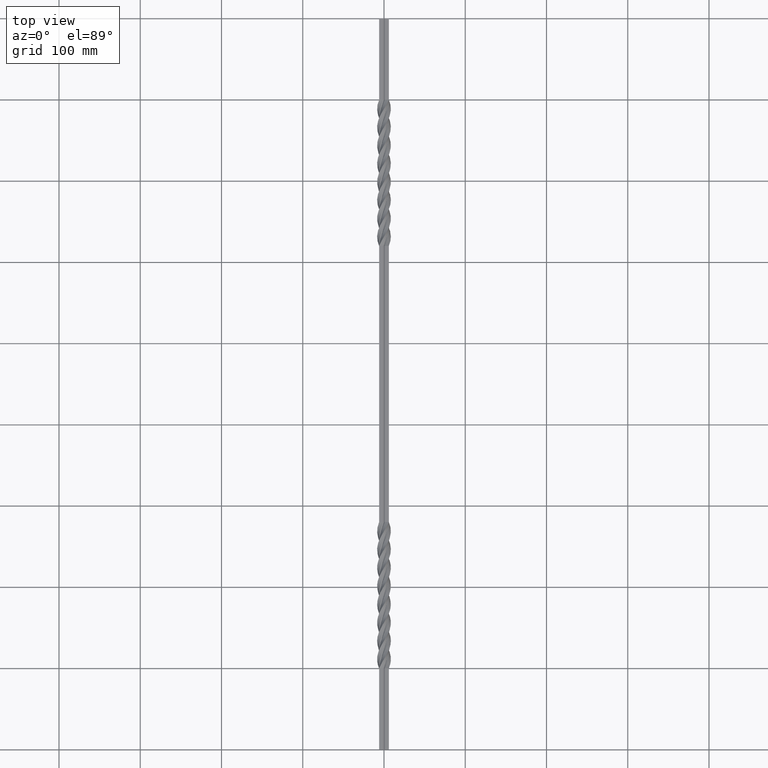
[diagram: clean part render]
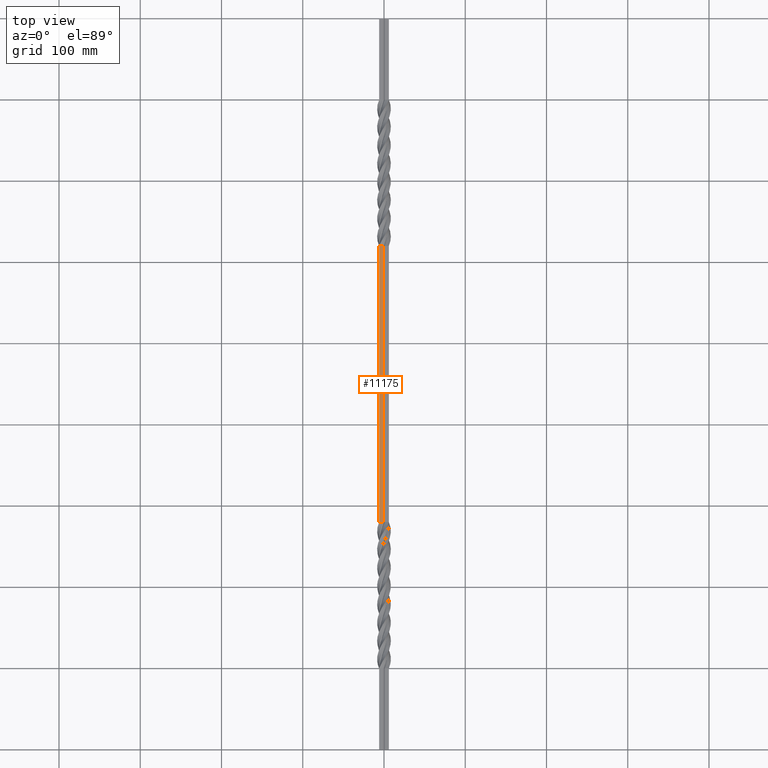
[diagram: same view with one face highlighted and labeled with its STEP entity id]
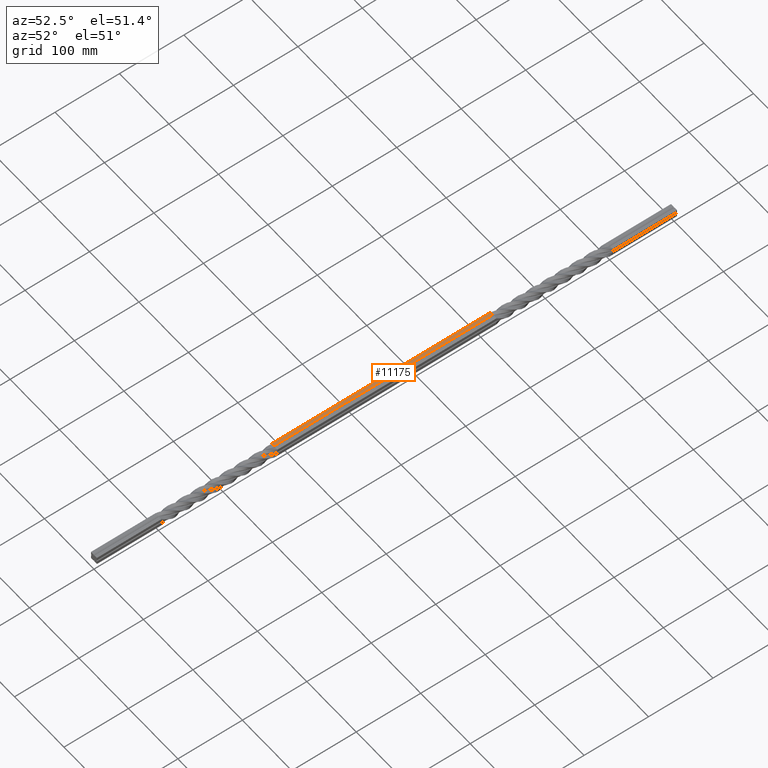
[diagram: same view with one face highlighted and labeled with its STEP entity id]
A machine part, top view. The second image highlights one B-rep face of the part: STEP entity #11175.
A second angle (auxiliary view) of the same face is appended — the face is thin or edge-on in the first view.
In plain terms, the highlighted planar face has unit normal (0, -0, -1).
Its self-contained STEP definition (entity closure, byte-faithful):
#3065 = DIRECTION ( 'NONE',  ( 1.523916004417311294E-15, -1.000000000000000000, 1.279431223420654558E-16 ) ) ;
#3243 = VERTEX_POINT ( 'NONE', #16425 ) ;
#4612 = EDGE_CURVE ( 'NONE', #10382, #11086, #18790, .T. ) ;
#5572 = LINE ( 'NONE', #16804, #13720 ) ;
#5697 = CARTESIAN_POINT ( 'NONE',  ( -1.000000019069537949, 900.0000000000000000, 5.999999996821856918 ) ) ;
#5777 = CARTESIAN_POINT ( 'NONE',  ( -6.000000019069546831, 900.0000000000000000, 5.999999980931709054 ) ) ;
#5849 = DIRECTION ( 'NONE',  ( -1.000000000000000000, -1.523916004417311294E-15, -3.178029512819652041E-09 ) ) ;
#6882 = LINE ( 'NONE', #19184, #12644 ) ;
#7866 = VERTEX_POINT ( 'NONE', #12245 ) ;
#8838 = DIRECTION ( 'NONE',  ( 3.178029512819652041E-09, -1.279431223420654558E-16, -1.000000000000000000 ) ) ;
#9765 = ORIENTED_EDGE ( 'NONE', *, *, #18565, .F. ) ;
#10331 = CARTESIAN_POINT ( 'NONE',  ( -6.000000019069546831, 900.0000000000000000, 5.999999980931709054 ) ) ;
#10382 = VERTEX_POINT ( 'NONE', #12386 ) ;
#10718 = FACE_OUTER_BOUND ( 'NONE', #19407, .T. ) ;
#10741 = DIRECTION ( 'NONE',  ( 0.9999999999999992228, -4.025863101110725045E-08, 3.178029512819654523E-09 ) ) ;
#11086 = VERTEX_POINT ( 'NONE', #16938 ) ;
#11167 = LINE ( 'NONE', #10331, #17572 ) ;
#11175 = ADVANCED_FACE ( 'NONE', ( #10718 ), #18041, .F. ) ;
#11299 = ORIENTED_EDGE ( 'NONE', *, *, #4612, .F. ) ;
#11578 = ORIENTED_EDGE ( 'NONE', *, *, #12099, .T. ) ;
#12099 = EDGE_CURVE ( 'NONE', #7866, #11086, #6882, .T. ) ;
#12245 = CARTESIAN_POINT ( 'NONE',  ( -6.000000019068601809, 280.0000000000000000, 5.999999980931788102 ) ) ;
#12386 = CARTESIAN_POINT ( 'NONE',  ( -1.000000065185274289, 620.0000027617411433, 5.999999989135515577 ) ) ;
#12644 = VECTOR ( 'NONE', #15063, 1000.000000000000000 ) ;
#13720 = VECTOR ( 'NONE', #10741, 1000.000000000000114 ) ;
#14106 = EDGE_CURVE ( 'NONE', #3243, #7866, #11167, .T. ) ;
#14220 = ORIENTED_EDGE ( 'NONE', *, *, #14106, .T. ) ;
#15017 = DIRECTION ( 'NONE',  ( 1.523916004417311294E-15, -1.000000000000000000, 1.279431223420654558E-16 ) ) ;
#15063 = DIRECTION ( 'NONE',  ( 1.000000000000000000, 1.523288527688414908E-15, 3.178029512819652041E-09 ) ) ;
#16405 = VECTOR ( 'NONE', #3065, 1000.000000000000000 ) ;
#16425 = CARTESIAN_POINT ( 'NONE',  ( -6.000000115651190846, 620.0000028425330356, 5.999999884341921330 ) ) ;
#16731 = AXIS2_PLACEMENT_3D ( 'NONE', #5777, #8838, #5849 ) ;
#16804 = CARTESIAN_POINT ( 'NONE',  ( -6.000011291486105236, 620.0000030731238212, 5.999999980931709054 ) ) ;
#16938 = CARTESIAN_POINT ( 'NONE',  ( -1.000000019068592927, 280.0000000000000000, 5.999999996821935966 ) ) ;
#17572 = VECTOR ( 'NONE', #15017, 1000.000000000000000 ) ;
#18041 = PLANE ( 'NONE',  #16731 ) ;
#18565 = EDGE_CURVE ( 'NONE', #3243, #10382, #5572, .T. ) ;
#18790 = LINE ( 'NONE', #5697, #16405 ) ;
#19184 = CARTESIAN_POINT ( 'NONE',  ( -6.000000019068601809, 280.0000000000000000, 5.999999980931788102 ) ) ;
#19407 = EDGE_LOOP ( 'NONE', ( #9765, #14220, #11578, #11299 ) ) ;